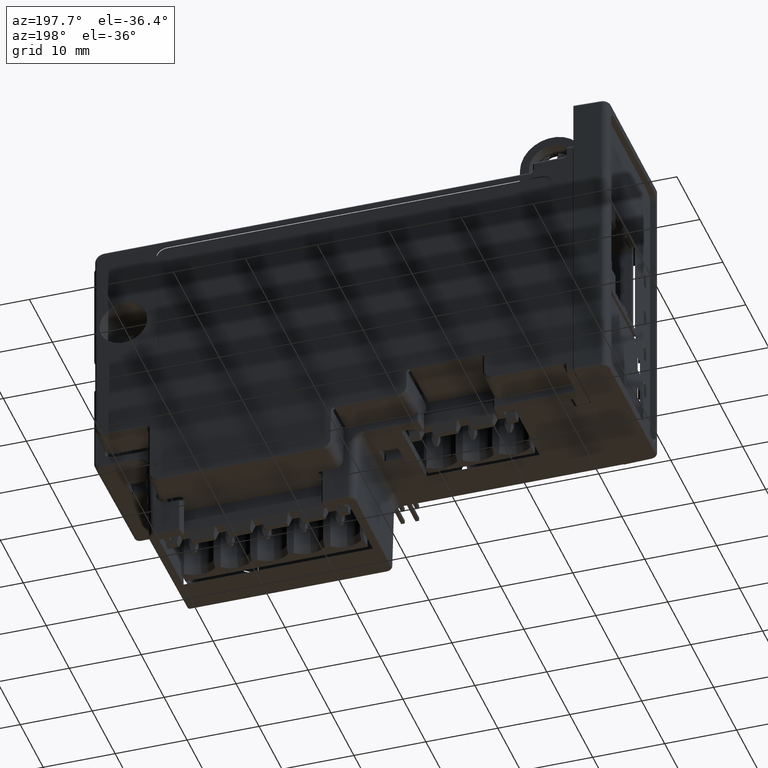
[diagram: clean part render]
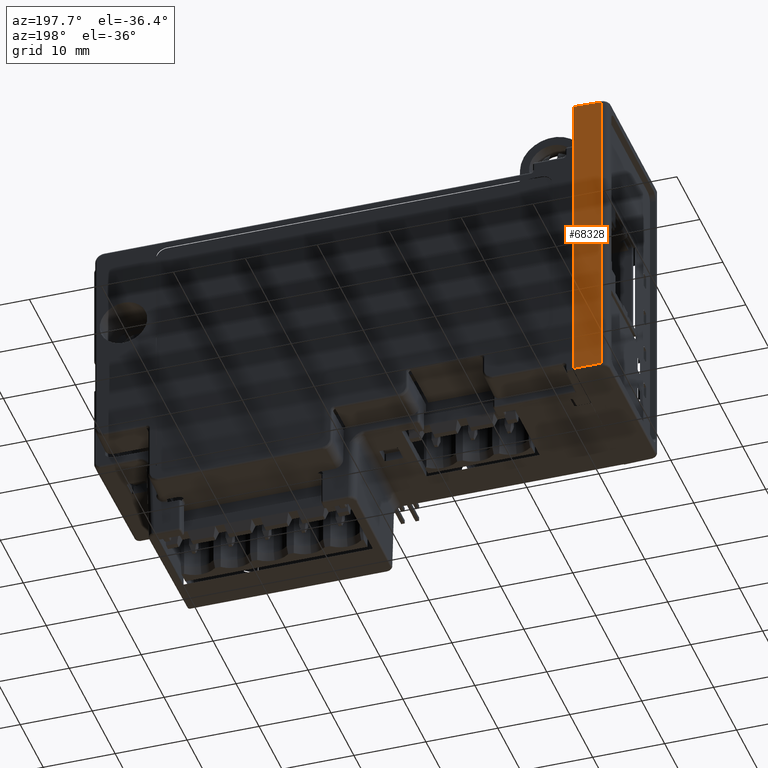
[diagram: same view with one face highlighted and labeled with its STEP entity id]
A machine part, auxiliary view. The second image highlights one B-rep face of the part: STEP entity #68328.
In plain terms, the highlighted planar face has unit normal (-0.0175, 0.9998, 0).
Its self-contained STEP definition (entity closure, byte-faithful):
#65115=CARTESIAN_POINT('',(-2.896445671053E1,7.838439077170E0,
3.283180493924E1));
#65133=CARTESIAN_POINT('',(-2.896445671053E1,7.838439077170E0,
-1.021828644367E1));
#66359=DIRECTION('',(9.996954439661E-1,1.745066095241E-2,1.744974916066E-2));
#66360=VECTOR('',#66359,3.818615327291E0);
#66361=CARTESIAN_POINT('',(-3.278190905548E1,7.771801715786E0,
3.276517105964E1));
#66362=LINE('',#66361,#66360);
#66363=DIRECTION('',(6.494500208673E-10,-3.750505944251E-8,-1.E0));
#66364=VECTOR('',#66363,4.291682362370E1);
#66365=CARTESIAN_POINT('',(-3.278190905548E1,7.771801715786E0,
3.276517105964E1));
#66366=LINE('',#66365,#66364);
#66367=DIRECTION('',(9.996954366081E-1,1.745108246491E-2,-1.744974916063E-2));
#66368=VECTOR('',#66367,3.818615327516E0);
#66369=CARTESIAN_POINT('',(-3.278190902761E1,7.771800106188E0,
-1.015165256406E1));
#66370=LINE('',#66369,#66368);
#66371=DIRECTION('',(0.E0,0.E0,1.E0));
#66372=VECTOR('',#66371,4.305009138291E1);
#66373=CARTESIAN_POINT('',(-2.896445671053E1,7.838439077170E0,
-1.021828644367E1));
#66374=LINE('',#66373,#66372);
#67153=VERTEX_POINT('',#65115);
#67157=CARTESIAN_POINT('',(-3.278190905548E1,7.771801715786E0,
3.276517105964E1));
#67158=VERTEX_POINT('',#67157);
#67170=VERTEX_POINT('',#65133);
#67171=CARTESIAN_POINT('',(-3.278190902761E1,7.771800106188E0,
-1.015165256406E1));
#67172=VERTEX_POINT('',#67171);
#68316=CARTESIAN_POINT('',(-2.896445671053E1,7.838439077170E0,
3.372277021215E1));
#68317=DIRECTION('',(-1.745240643728E-2,9.998476951564E-1,0.E0));
#68318=DIRECTION('',(0.E0,0.E0,1.E0));
#68319=AXIS2_PLACEMENT_3D('',#68316,#68317,#68318);
#68320=PLANE('',#68319);
#68322=ORIENTED_EDGE('',*,*,#68321,.F.);
#68323=ORIENTED_EDGE('',*,*,#68229,.T.);
#68324=ORIENTED_EDGE('',*,*,#68309,.T.);
#68325=ORIENTED_EDGE('',*,*,#67400,.T.);
#68326=EDGE_LOOP('',(#68322,#68323,#68324,#68325));
#68327=FACE_OUTER_BOUND('',#68326,.F.);
#68328=ADVANCED_FACE('',(#68327),#68320,.T.);
#67400=EDGE_CURVE('',#67170,#67153,#66374,.T.);
#68229=EDGE_CURVE('',#67158,#67172,#66366,.T.);
#68309=EDGE_CURVE('',#67172,#67170,#66370,.T.);
#68321=EDGE_CURVE('',#67158,#67153,#66362,.T.);